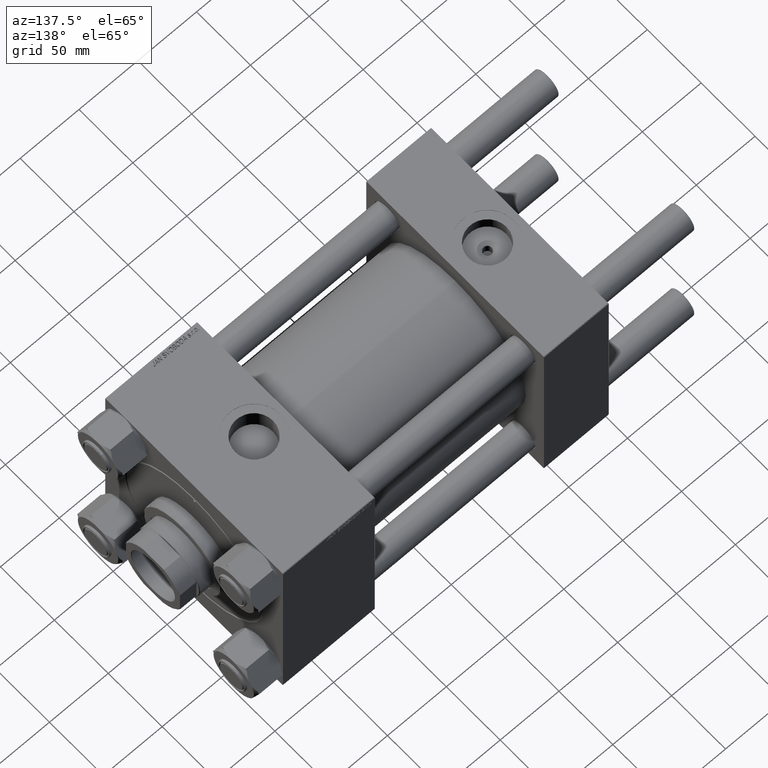
[diagram: clean part render]
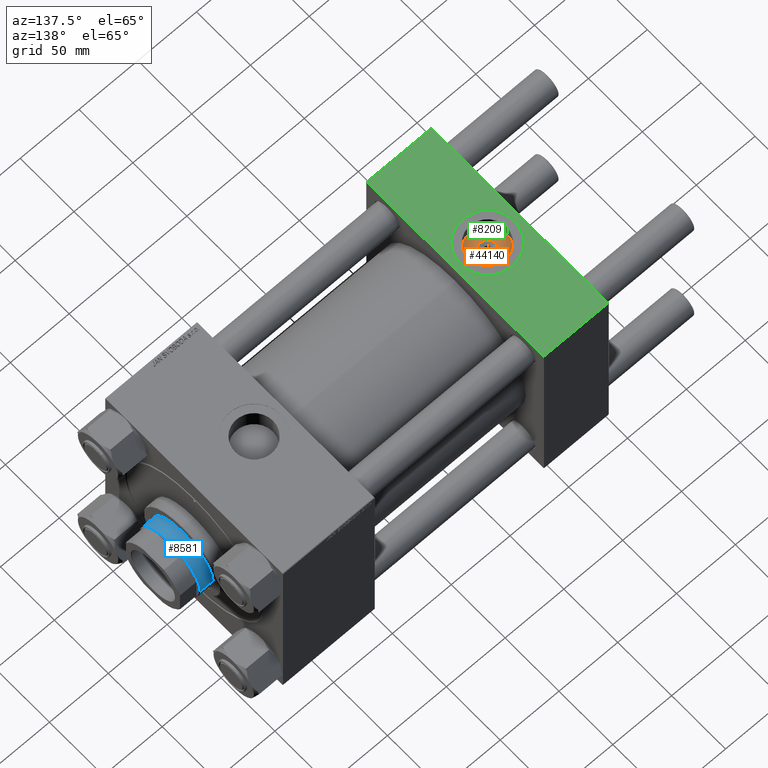
[diagram: same view with three faces highlighted in distinct colors, each labeled with its STEP entity id]
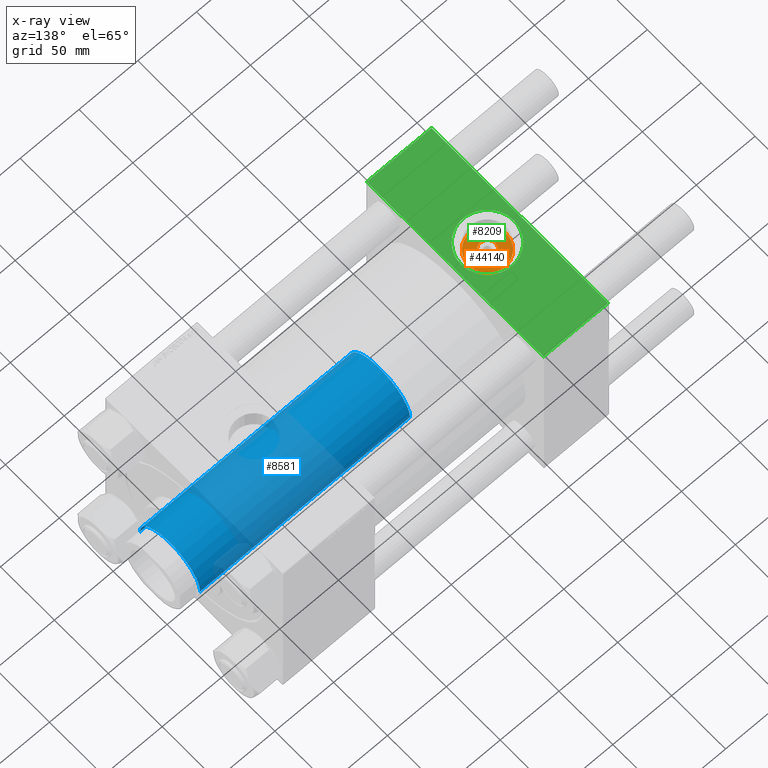
[diagram: x-ray of the same camera — body ghosted, the three highlighted faces saturated]
A machine part, auxiliary view with three faces highlighted in distinct colors.
The next image is the same camera in x-ray (body ghosted, the three faces saturated) — at least one of them is partly hidden behind the body in this view.
Their STEP definitions:

[orange] entity #44140 — the highlighted planar face has unit normal (0, 0, 1).
#5194 = EDGE_LOOP ( 'NONE', ( #29873, #39701 ) ) ;
#5395 = FACE_BOUND ( 'NONE', #24369, .T. ) ;
#5927 = AXIS2_PLACEMENT_3D ( 'NONE', #28619, #21216, #21465 ) ;
#6128 = CARTESIAN_POINT ( 'NONE',  ( 27.50000000000000000, -8.673617379884037050E-15, 71.70000000000001705 ) ) ;
#7323 = VERTEX_POINT ( 'NONE', #14710 ) ;
#8143 = EDGE_CURVE ( 'NONE', #7323, #39186, #34185, .T. ) ;
#13975 = DIRECTION ( 'NONE',  ( 1.000000000000000000, 0.000000000000000000, 0.000000000000000000 ) ) ;
#14710 = CARTESIAN_POINT ( 'NONE',  ( 20.85999999999996390, -7.860451905250190996E-15, 71.70000000000001705 ) ) ;
#16094 = ORIENTED_EDGE ( 'NONE', *, *, #8143, .T. ) ;
#16111 = VERTEX_POINT ( 'NONE', #41260 ) ;
#17389 = AXIS2_PLACEMENT_3D ( 'NONE', #29215, #45793, #18256 ) ;
#18256 = DIRECTION ( 'NONE',  ( 1.000000000000000000, 0.000000000000000000, 0.000000000000000000 ) ) ;
#19225 = CARTESIAN_POINT ( 'NONE',  ( 11.37999999999999012, -6.699486739658503022E-15, 71.70000000000001705 ) ) ;
#21167 = EDGE_CURVE ( 'NONE', #39186, #7323, #27136, .T. ) ;
#21216 = DIRECTION ( 'NONE',  ( 0.000000000000000000, 0.000000000000000000, 1.000000000000000000 ) ) ;
#21367 = CARTESIAN_POINT ( 'NONE',  ( 27.50000000000000000, -8.673617379884037050E-15, 71.70000000000001705 ) ) ;
#21465 = DIRECTION ( 'NONE',  ( 1.000000000000000000, 0.000000000000000000, -0.000000000000000000 ) ) ;
#24369 = EDGE_LOOP ( 'NONE', ( #41699, #16094 ) ) ;
#25186 = DIRECTION ( 'NONE',  ( -0.000000000000000000, -0.000000000000000000, -1.000000000000000000 ) ) ;
#25410 = CIRCLE ( 'NONE', #49844, 16.12000000000000455 ) ;
#27136 = CIRCLE ( 'NONE', #17389, 6.640000000000031655 ) ;
#27424 = VERTEX_POINT ( 'NONE', #19225 ) ;
#28619 = CARTESIAN_POINT ( 'NONE',  ( 27.50000000000000000, -8.673617379884037050E-15, 71.70000000000001705 ) ) ;
#29088 = DIRECTION ( 'NONE',  ( 1.000000000000000000, 0.000000000000000000, 0.000000000000000000 ) ) ;
#29215 = CARTESIAN_POINT ( 'NONE',  ( 27.50000000000000000, -8.673617379884037050E-15, 71.70000000000001705 ) ) ;
#29873 = ORIENTED_EDGE ( 'NONE', *, *, #42199, .T. ) ;
#30219 = CIRCLE ( 'NONE', #44890, 16.12000000000000455 ) ;
#31749 = AXIS2_PLACEMENT_3D ( 'NONE', #21367, #25186, #13975 ) ;
#32185 = CARTESIAN_POINT ( 'NONE',  ( 27.50000000000000000, -8.673617379884037050E-15, 71.70000000000001705 ) ) ;
#34185 = CIRCLE ( 'NONE', #31749, 6.640000000000031655 ) ;
#36531 = PLANE ( 'NONE',  #5927 ) ;
#39186 = VERTEX_POINT ( 'NONE', #41796 ) ;
#39578 = DIRECTION ( 'NONE',  ( 1.000000000000000000, 0.000000000000000000, 0.000000000000000000 ) ) ;
#39701 = ORIENTED_EDGE ( 'NONE', *, *, #40181, .T. ) ;
#39830 = DIRECTION ( 'NONE',  ( 0.000000000000000000, 0.000000000000000000, 1.000000000000000000 ) ) ;
#40181 = EDGE_CURVE ( 'NONE', #27424, #16111, #30219, .T. ) ;
#41260 = CARTESIAN_POINT ( 'NONE',  ( 43.62000000000000455, -8.673617379884037050E-15, 71.70000000000001705 ) ) ;
#41699 = ORIENTED_EDGE ( 'NONE', *, *, #21167, .T. ) ;
#41796 = CARTESIAN_POINT ( 'NONE',  ( 34.14000000000002899, -8.673617379884037050E-15, 71.70000000000001705 ) ) ;
#42199 = EDGE_CURVE ( 'NONE', #16111, #27424, #25410, .T. ) ;
#44140 = ADVANCED_FACE ( 'NONE', ( #5395, #44668 ), #36531, .T. ) ;
#44668 = FACE_OUTER_BOUND ( 'NONE', #5194, .T. ) ;
#44890 = AXIS2_PLACEMENT_3D ( 'NONE', #32185, #39830, #39578 ) ;
#44903 = DIRECTION ( 'NONE',  ( 0.000000000000000000, 0.000000000000000000, 1.000000000000000000 ) ) ;
#45793 = DIRECTION ( 'NONE',  ( -0.000000000000000000, -0.000000000000000000, -1.000000000000000000 ) ) ;
#49844 = AXIS2_PLACEMENT_3D ( 'NONE', #6128, #44903, #29088 ) ;

[blue] entity #8581 — the highlighted cylindrical surface (partial cylindrical patch) has radius 28 mm, axis along (-1, 0, 0).
#1929 = DIRECTION ( 'NONE',  ( 0.000000000000000000, 0.000000000000000000, 1.000000000000000000 ) ) ;
#2437 = VERTEX_POINT ( 'NONE', #21666 ) ;
#3088 = EDGE_LOOP ( 'NONE', ( #10563, #45009, #49266, #10874 ) ) ;
#3335 = EDGE_CURVE ( 'NONE', #27837, #2437, #36229, .T. ) ;
#3900 = CARTESIAN_POINT ( 'NONE',  ( -28.00000000000000000, 0.000000000000000000, 64.00000000000000000 ) ) ;
#5250 = DIRECTION ( 'NONE',  ( -0.000000000000000000, -0.000000000000000000, -1.000000000000000000 ) ) ;
#5485 = FACE_OUTER_BOUND ( 'NONE', #3088, .T. ) ;
#5732 = DIRECTION ( 'NONE',  ( -1.000000000000000000, 0.000000000000000000, 0.000000000000000000 ) ) ;
#5751 = CARTESIAN_POINT ( 'NONE',  ( 0.000000000000000000, 0.000000000000000000, 64.00000000000000000 ) ) ;
#6587 = VERTEX_POINT ( 'NONE', #34782 ) ;
#8581 = ADVANCED_FACE ( 'NONE', ( #5485 ), #24638, .T. ) ;
#10563 = ORIENTED_EDGE ( 'NONE', *, *, #3335, .F. ) ;
#10714 = CIRCLE ( 'NONE', #48980, 28.00000000000000000 ) ;
#10874 = ORIENTED_EDGE ( 'NONE', *, *, #42886, .T. ) ;
#12426 = VERTEX_POINT ( 'NONE', #3900 ) ;
#13860 = LINE ( 'NONE', #38067, #45080 ) ;
#16466 = EDGE_CURVE ( 'NONE', #27837, #6587, #10714, .T. ) ;
#16752 = DIRECTION ( 'NONE',  ( 1.000000000000000000, 0.000000000000000000, 0.000000000000000000 ) ) ;
#17741 = DIRECTION ( 'NONE',  ( 0.000000000000000000, 0.000000000000000000, -1.000000000000000000 ) ) ;
#20680 = EDGE_CURVE ( 'NONE', #6587, #12426, #13860, .T. ) ;
#21643 = CARTESIAN_POINT ( 'NONE',  ( 28.00000000000000000, 3.429011037612588487E-15, 243.0000000000000000 ) ) ;
#21666 = CARTESIAN_POINT ( 'NONE',  ( 28.00000000000000000, 3.429011037612588487E-15, 64.00000000000000000 ) ) ;
#23815 = CIRCLE ( 'NONE', #47455, 28.00000000000000000 ) ;
#24638 = CYLINDRICAL_SURFACE ( 'NONE', #46401, 28.00000000000000000 ) ;
#27837 = VERTEX_POINT ( 'NONE', #49899 ) ;
#29403 = DIRECTION ( 'NONE',  ( -0.000000000000000000, -0.000000000000000000, -1.000000000000000000 ) ) ;
#32896 = DIRECTION ( 'NONE',  ( -0.000000000000000000, -0.000000000000000000, -1.000000000000000000 ) ) ;
#34782 = CARTESIAN_POINT ( 'NONE',  ( -28.00000000000000000, 0.000000000000000000, 242.5000000000001137 ) ) ;
#36229 = LINE ( 'NONE', #21643, #39707 ) ;
#38067 = CARTESIAN_POINT ( 'NONE',  ( -28.00000000000000000, 0.000000000000000000, 243.0000000000000000 ) ) ;
#39707 = VECTOR ( 'NONE', #32896, 1000.000000000000000 ) ;
#42886 = EDGE_CURVE ( 'NONE', #12426, #2437, #23815, .T. ) ;
#44759 = CARTESIAN_POINT ( 'NONE',  ( 0.000000000000000000, 0.000000000000000000, 243.0000000000000000 ) ) ;
#45009 = ORIENTED_EDGE ( 'NONE', *, *, #16466, .T. ) ;
#45080 = VECTOR ( 'NONE', #29403, 1000.000000000000000 ) ;
#46401 = AXIS2_PLACEMENT_3D ( 'NONE', #44759, #5250, #5732 ) ;
#47455 = AXIS2_PLACEMENT_3D ( 'NONE', #5751, #1929, #48599 ) ;
#47856 = CARTESIAN_POINT ( 'NONE',  ( 0.000000000000000000, 0.000000000000000000, 242.5000000000001137 ) ) ;
#48599 = DIRECTION ( 'NONE',  ( 1.000000000000000000, 0.000000000000000000, 0.000000000000000000 ) ) ;
#48980 = AXIS2_PLACEMENT_3D ( 'NONE', #47856, #17741, #16752 ) ;
#49266 = ORIENTED_EDGE ( 'NONE', *, *, #20680, .T. ) ;
#49899 = CARTESIAN_POINT ( 'NONE',  ( 28.00000000000000000, 3.429011037612588487E-15, 242.5000000000001137 ) ) ;

[green] entity #8209 — the highlighted planar face has unit normal (0, 0, -1).
#92 = EDGE_CURVE ( 'NONE', #20121, #42495, #12661, .T. ) ;
#911 = CARTESIAN_POINT ( 'NONE',  ( 0.000000000000000000, 82.00000000000005684, 82.50000000000002842 ) ) ;
#1320 = ORIENTED_EDGE ( 'NONE', *, *, #4763, .T. ) ;
#1476 = VERTEX_POINT ( 'NONE', #24741 ) ;
#2220 = DIRECTION ( 'NONE',  ( 0.000000000000000000, 8.410780489584519171E-17, -1.000000000000000000 ) ) ;
#4763 = EDGE_CURVE ( 'NONE', #1476, #44215, #42489, .T. ) ;
#4924 = EDGE_CURVE ( 'NONE', #42495, #1476, #6723, .T. ) ;
#6723 = LINE ( 'NONE', #17712, #32436 ) ;
#7273 = AXIS2_PLACEMENT_3D ( 'NONE', #29519, #2220, #48404 ) ;
#8209 = ADVANCED_FACE ( 'NONE', ( #24693, #21115 ), #36684, .F. ) ;
#11485 = ORIENTED_EDGE ( 'NONE', *, *, #92, .T. ) ;
#12407 = CARTESIAN_POINT ( 'NONE',  ( 55.00000000000000000, -81.99999999999997158, 82.50000000000001421 ) ) ;
#12661 = LINE ( 'NONE', #911, #33201 ) ;
#13777 = EDGE_CURVE ( 'NONE', #20121, #44215, #38235, .T. ) ;
#13845 = AXIS2_PLACEMENT_3D ( 'NONE', #19479, #18981, #49575 ) ;
#14757 = CARTESIAN_POINT ( 'NONE',  ( 55.00000000000000000, -81.99999999999997158, 82.50000000000001421 ) ) ;
#17558 = CARTESIAN_POINT ( 'NONE',  ( 0.000000000000000000, 82.00000000000005684, 82.50000000000002842 ) ) ;
#17712 = CARTESIAN_POINT ( 'NONE',  ( 0.000000000000000000, 82.50000000000002842, 82.50000000000002842 ) ) ;
#18981 = DIRECTION ( 'NONE',  ( 0.000000000000000000, 0.000000000000000000, 1.000000000000000000 ) ) ;
#19479 = CARTESIAN_POINT ( 'NONE',  ( 27.50000000000000000, -8.673617379884037050E-15, 82.50000000000001421 ) ) ;
#20121 = VERTEX_POINT ( 'NONE', #34151 ) ;
#20140 = CARTESIAN_POINT ( 'NONE',  ( 50.00000000000000000, -8.673617379884037050E-15, 82.50000000000001421 ) ) ;
#21115 = FACE_OUTER_BOUND ( 'NONE', #45013, .T. ) ;
#22161 = ORIENTED_EDGE ( 'NONE', *, *, #13777, .F. ) ;
#23351 = DIRECTION ( 'NONE',  ( 1.000000000000000000, 0.000000000000000000, 0.000000000000000000 ) ) ;
#23621 = EDGE_LOOP ( 'NONE', ( #36298, #39180 ) ) ;
#24693 = FACE_BOUND ( 'NONE', #23621, .T. ) ;
#24741 = CARTESIAN_POINT ( 'NONE',  ( 0.000000000000000000, -81.99999999999997158, 82.50000000000001421 ) ) ;
#26691 = EDGE_CURVE ( 'NONE', #48146, #34851, #47014, .T. ) ;
#26753 = CARTESIAN_POINT ( 'NONE',  ( 55.00000000000000000, 82.50000000000002842, 82.50000000000002842 ) ) ;
#29519 = CARTESIAN_POINT ( 'NONE',  ( 55.00000000000000000, 82.50000000000002842, 82.50000000000002842 ) ) ;
#30451 = DIRECTION ( 'NONE',  ( 0.000000000000000000, -1.000000000000000000, -8.410780489584519171E-17 ) ) ;
#30697 = AXIS2_PLACEMENT_3D ( 'NONE', #48507, #48013, #44676 ) ;
#32436 = VECTOR ( 'NONE', #30451, 1000.000000000000000 ) ;
#33201 = VECTOR ( 'NONE', #36864, 1000.000000000000000 ) ;
#33237 = EDGE_CURVE ( 'NONE', #34851, #48146, #46426, .T. ) ;
#34151 = CARTESIAN_POINT ( 'NONE',  ( 55.00000000000000000, 82.00000000000005684, 82.50000000000002842 ) ) ;
#34505 = CARTESIAN_POINT ( 'NONE',  ( 4.999999999999993783, -5.918162081802491483E-15, 82.50000000000001421 ) ) ;
#34851 = VERTEX_POINT ( 'NONE', #20140 ) ;
#36175 = ORIENTED_EDGE ( 'NONE', *, *, #4924, .T. ) ;
#36298 = ORIENTED_EDGE ( 'NONE', *, *, #33237, .F. ) ;
#36684 = PLANE ( 'NONE',  #7273 ) ;
#36864 = DIRECTION ( 'NONE',  ( -1.000000000000000000, 0.000000000000000000, 0.000000000000000000 ) ) ;
#38095 = VECTOR ( 'NONE', #23351, 1000.000000000000000 ) ;
#38235 = LINE ( 'NONE', #26753, #49022 ) ;
#39180 = ORIENTED_EDGE ( 'NONE', *, *, #26691, .F. ) ;
#42489 = LINE ( 'NONE', #12407, #38095 ) ;
#42495 = VERTEX_POINT ( 'NONE', #17558 ) ;
#44215 = VERTEX_POINT ( 'NONE', #14757 ) ;
#44676 = DIRECTION ( 'NONE',  ( 1.000000000000000000, 0.000000000000000000, 0.000000000000000000 ) ) ;
#45013 = EDGE_LOOP ( 'NONE', ( #36175, #1320, #22161, #11485 ) ) ;
#46138 = DIRECTION ( 'NONE',  ( 0.000000000000000000, -1.000000000000000000, -8.410780489584519171E-17 ) ) ;
#46426 = CIRCLE ( 'NONE', #13845, 22.50000000000000355 ) ;
#47014 = CIRCLE ( 'NONE', #30697, 22.50000000000000355 ) ;
#48013 = DIRECTION ( 'NONE',  ( 0.000000000000000000, 0.000000000000000000, 1.000000000000000000 ) ) ;
#48146 = VERTEX_POINT ( 'NONE', #34505 ) ;
#48404 = DIRECTION ( 'NONE',  ( 0.000000000000000000, 1.000000000000000000, 8.410780489584519171E-17 ) ) ;
#48507 = CARTESIAN_POINT ( 'NONE',  ( 27.50000000000000000, -8.673617379884037050E-15, 82.50000000000001421 ) ) ;
#49022 = VECTOR ( 'NONE', #46138, 1000.000000000000000 ) ;
#49575 = DIRECTION ( 'NONE',  ( 1.000000000000000000, 0.000000000000000000, 0.000000000000000000 ) ) ;